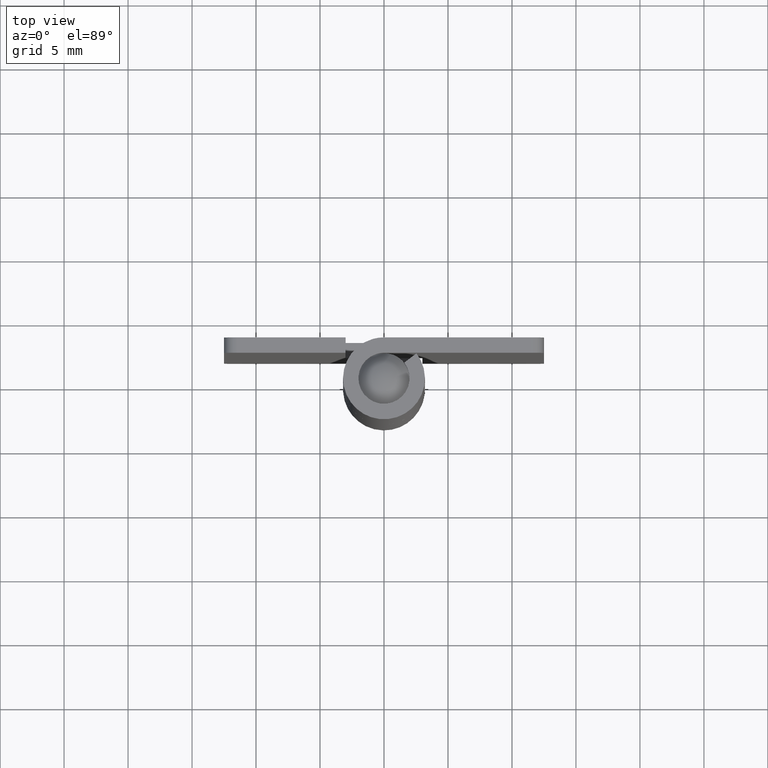
[diagram: clean part render]
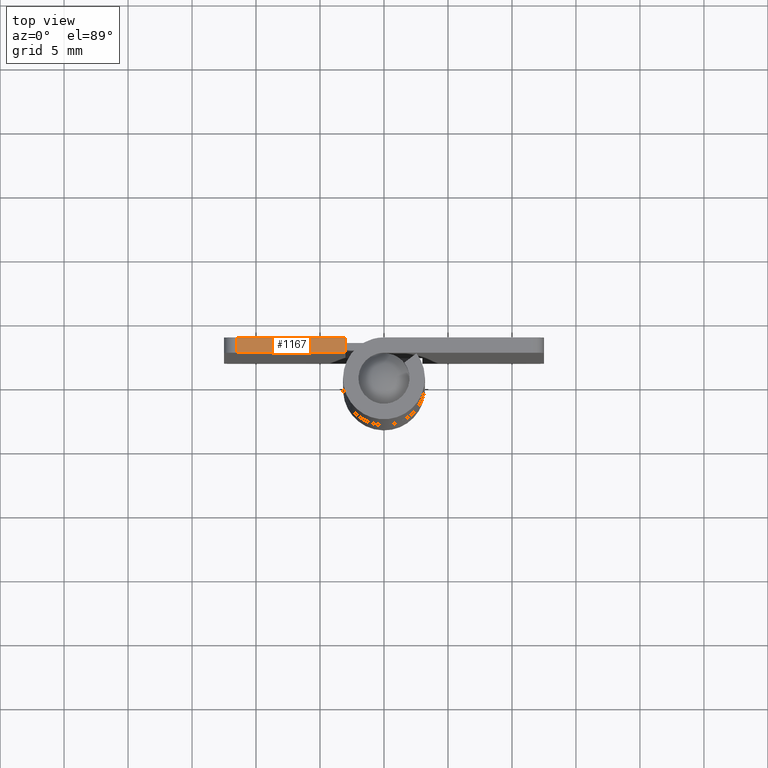
[diagram: same view with one face highlighted and labeled with its STEP entity id]
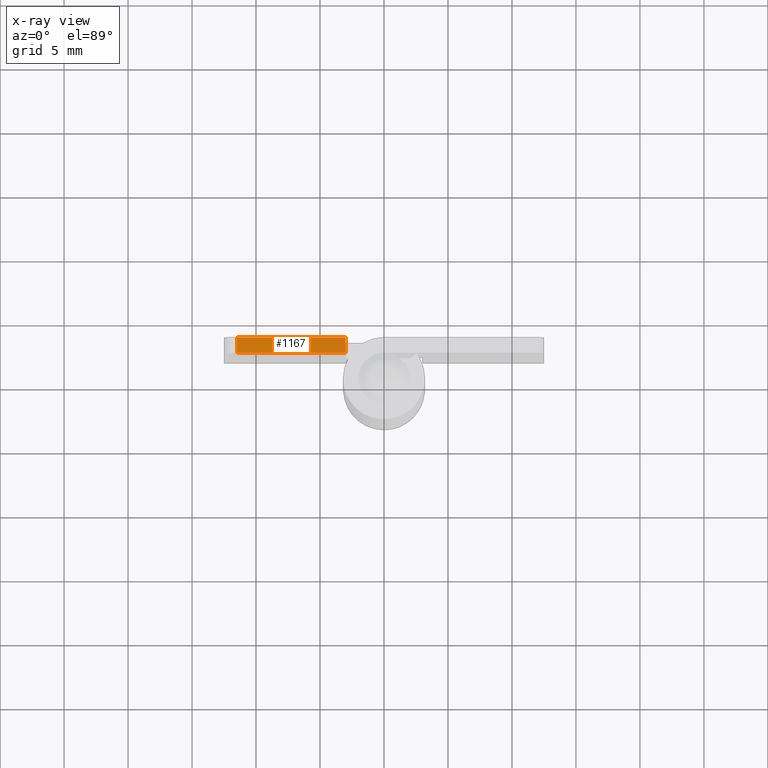
[diagram: x-ray of the same camera — body ghosted, the highlighted face saturated]
A machine part, top view. The second image highlights one B-rep face of the part: STEP entity #1167.
The next image is the same camera in x-ray: the body ghosted, the highlighted face saturated — about 0% of this face is hidden behind the body in this view.
In plain terms, the highlighted face is a freeform B-spline surface patch.
Its self-contained STEP definition (entity closure, byte-faithful):
#835=CARTESIAN_POINT('',(-3.0,2.0,50.0));
#836=VERTEX_POINT('',#835);
#851=CARTESIAN_POINT('',(-3.0,3.200000999999955,50.0));
#852=VERTEX_POINT('',#851);
#858=CARTESIAN_POINT('',(-3.0,3.200000999999955,50.0));
#859=CARTESIAN_POINT('',(-3.0,2.0,50.0));
#860=QUASI_UNIFORM_CURVE('',1,(#858,#859),.UNSPECIFIED.,.F.,.U.);
#861=EDGE_CURVE('',#852,#836,#860,.T.);
#950=CARTESIAN_POINT('',(-11.500000000000000,2.0,50.0));
#951=VERTEX_POINT('',#950);
#967=CARTESIAN_POINT('',(-11.500000000000000,3.200000999999955,50.0));
#968=VERTEX_POINT('',#967);
#969=CARTESIAN_POINT('',(-11.500000000000000,3.200000999999955,50.0));
#970=CARTESIAN_POINT('',(-11.500000000000000,2.0,50.0));
#971=QUASI_UNIFORM_CURVE('',1,(#969,#970),.UNSPECIFIED.,.F.,.U.);
#972=EDGE_CURVE('',#968,#951,#971,.T.);
#1148=CARTESIAN_POINT('',(-11.924574983525350,1.940059952375837,50.0));
#1149=CARTESIAN_POINT('',(-2.575424788486883,1.940059952375837,50.0));
#1150=CARTESIAN_POINT('',(-11.924574983525350,3.259941079810654,50.0));
#1151=CARTESIAN_POINT('',(-2.575424788486883,3.259941079810654,50.0));
#1152=B_SPLINE_SURFACE_WITH_KNOTS('',1,1,((#1148,#1150),(#1149,#1151)),.UNSPECIFIED.,.F.,.F.,.U.,(2,2),(2,2),(0.0,9.349150195038469),(0.041708334948495,0.958291687403247),.UNSPECIFIED.);
#1153=CARTESIAN_POINT('',(-11.500000000000000,2.0,50.0));
#1154=CARTESIAN_POINT('',(-3.0,2.0,50.0));
#1155=QUASI_UNIFORM_CURVE('',1,(#1153,#1154),.UNSPECIFIED.,.F.,.U.);
#1156=EDGE_CURVE('',#951,#836,#1155,.T.);
#1157=ORIENTED_EDGE('',*,*,#1156,.T.);
#1158=ORIENTED_EDGE('',*,*,#861,.F.);
#1159=CARTESIAN_POINT('',(-3.0,3.200000999999955,50.0));
#1160=CARTESIAN_POINT('',(-11.500000000000000,3.200000999999955,50.0));
#1161=QUASI_UNIFORM_CURVE('',1,(#1159,#1160),.UNSPECIFIED.,.F.,.U.);
#1162=EDGE_CURVE('',#852,#968,#1161,.T.);
#1163=ORIENTED_EDGE('',*,*,#1162,.T.);
#1164=ORIENTED_EDGE('',*,*,#972,.T.);
#1165=EDGE_LOOP('',(#1157,#1158,#1163,#1164));
#1166=FACE_OUTER_BOUND('',#1165,.T.);
#1167=ADVANCED_FACE('',(#1166),#1152,.T.);